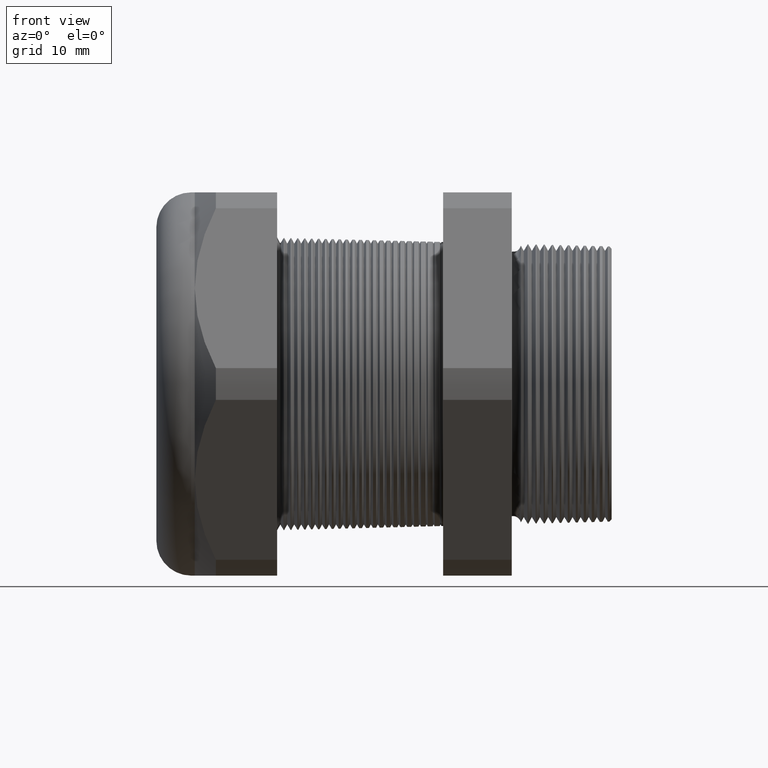
[diagram: clean part render]
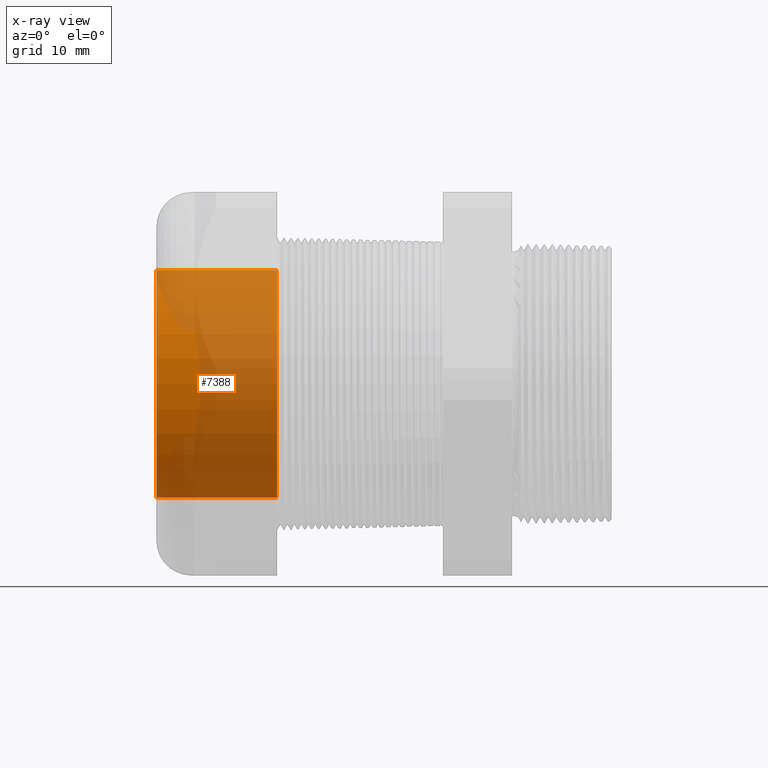
[diagram: x-ray — body ghosted, one internal face saturated and labeled with its STEP entity id]
A machine part, front view, then the same camera in x-ray: the body is ghosted and one INTERNAL B-rep face — a face not visible from any outside direction — is saturated and labeled: STEP entity #7388.
In plain terms, the highlighted cylindrical surface (partial cylindrical patch) has radius 12.446 mm, axis along (1, 0, 0).
Its self-contained STEP definition (entity closure, byte-faithful):
#6453 = LINE ( 'NONE', #6459, #6515 ) ;
#6454 = DIRECTION ( 'NONE',  ( 0.0000000000000000000, 0.0000000000000000000, -1.000000000000000000 ) ) ;
#6455 = DIRECTION ( 'NONE',  ( 1.000000000000000000, 0.0000000000000000000, 0.0000000000000000000 ) ) ;
#6456 = CARTESIAN_POINT ( 'NONE',  ( -1.320314960629921200, 0.0000000000000000000, 0.0000000000000000000 ) ) ;
#6457 = AXIS2_PLACEMENT_3D ( 'NONE', #6456, #6455, #6454 ) ;
#6458 = CIRCLE ( 'NONE', #6457, 0.4899999999999999900 ) ;
#6459 = CARTESIAN_POINT ( 'NONE',  ( 0.0000000000000000000, 6.000769315822029800E-017, 0.4899999999999999900 ) ) ;
#6460 = CARTESIAN_POINT ( 'NONE',  ( -1.320314960629921200, 0.0000000000000000000, 0.4899999999999999900 ) ) ;
#6461 = CARTESIAN_POINT ( 'NONE',  ( -1.840000000000000100, 0.0000000000000000000, -0.4899999999999999900 ) ) ;
#6473 = CARTESIAN_POINT ( 'NONE',  ( -1.840000000000000100, 6.000769315822029800E-017, 0.4899999999999999900 ) ) ;
#6492 = DIRECTION ( 'NONE',  ( 0.0000000000000000000, 0.0000000000000000000, -1.000000000000000000 ) ) ;
#6493 = DIRECTION ( 'NONE',  ( 1.000000000000000000, 0.0000000000000000000, 0.0000000000000000000 ) ) ;
#6494 = CARTESIAN_POINT ( 'NONE',  ( 0.0000000000000000000, 0.0000000000000000000, 0.0000000000000000000 ) ) ;
#6495 = AXIS2_PLACEMENT_3D ( 'NONE', #6494, #6493, #6492 ) ;
#6496 = CYLINDRICAL_SURFACE ( 'NONE', #6495, 0.4899999999999999900 ) ;
#6497 = FACE_OUTER_BOUND ( 'NONE', #7386, .T. ) ;
#6498 = DIRECTION ( 'NONE',  ( 0.0000000000000000000, 0.0000000000000000000, -1.000000000000000000 ) ) ;
#6499 = DIRECTION ( 'NONE',  ( 1.000000000000000000, 0.0000000000000000000, 0.0000000000000000000 ) ) ;
#6500 = CARTESIAN_POINT ( 'NONE',  ( -1.840000000000000100, 0.0000000000000000000, 0.0000000000000000000 ) ) ;
#6501 = AXIS2_PLACEMENT_3D ( 'NONE', #6500, #6499, #6498 ) ;
#6502 = CIRCLE ( 'NONE', #6501, 0.4899999999999999900 ) ;
#6514 = DIRECTION ( 'NONE',  ( 1.000000000000000000, 0.0000000000000000000, 0.0000000000000000000 ) ) ;
#6515 = VECTOR ( 'NONE', #6514, 39.37007874015748100 ) ;
#6536 = DIRECTION ( 'NONE',  ( 1.000000000000000000, 0.0000000000000000000, 0.0000000000000000000 ) ) ;
#6537 = VECTOR ( 'NONE', #6536, 39.37007874015748100 ) ;
#6538 = CARTESIAN_POINT ( 'NONE',  ( 0.0000000000000000000, 0.0000000000000000000, -0.4899999999999999900 ) ) ;
#6539 = LINE ( 'NONE', #6538, #6537 ) ;
#6540 = CARTESIAN_POINT ( 'NONE',  ( -1.320314960629921200, 6.000769315822029800E-017, -0.4899999999999999900 ) ) ;
#7371 = VERTEX_POINT ( 'NONE', #6473 ) ;
#7376 = VERTEX_POINT ( 'NONE', #6461 ) ;
#7377 = VERTEX_POINT ( 'NONE', #6460 ) ;
#7378 = EDGE_CURVE ( 'NONE', #7377, #7398, #6458, .T. ) ;
#7379 = ORIENTED_EDGE ( 'NONE', *, *, #7380, .T. ) ;
#7380 = EDGE_CURVE ( 'NONE', #7371, #7377, #6453, .T. ) ;
#7381 = ORIENTED_EDGE ( 'NONE', *, *, #7378, .T. ) ;
#7385 = EDGE_CURVE ( 'NONE', #7371, #7376, #6502, .T. ) ;
#7386 = EDGE_LOOP ( 'NONE', ( #7389, #7379, #7381, #7399 ) ) ;
#7388 = ADVANCED_FACE ( 'NONE', ( #6497 ), #6496, .F. ) ;
#7389 = ORIENTED_EDGE ( 'NONE', *, *, #7385, .F. ) ;
#7398 = VERTEX_POINT ( 'NONE', #6540 ) ;
#7399 = ORIENTED_EDGE ( 'NONE', *, *, #7400, .F. ) ;
#7400 = EDGE_CURVE ( 'NONE', #7376, #7398, #6539, .T. ) ;